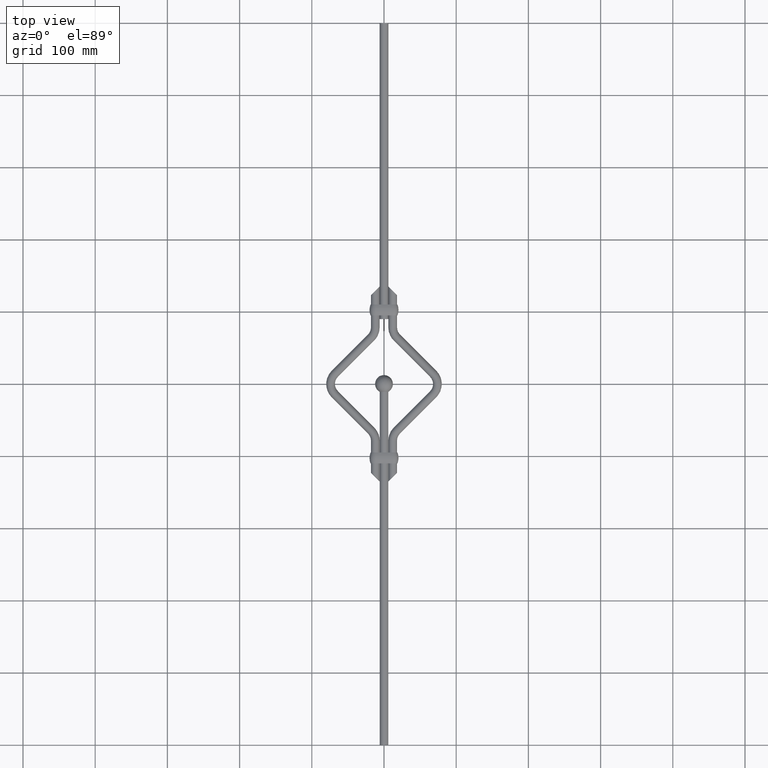
[diagram: clean part render]
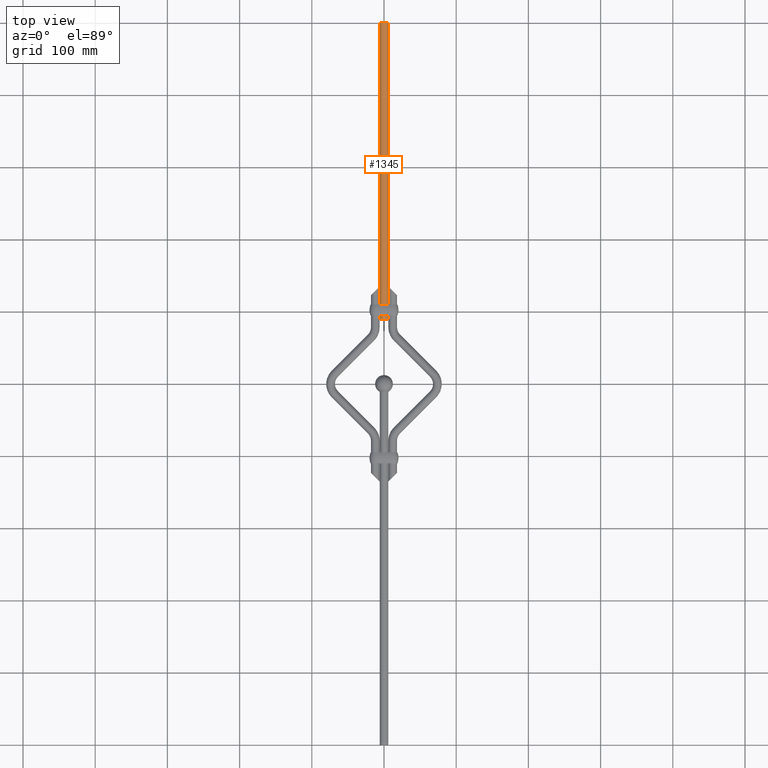
[diagram: same view with one face highlighted and labeled with its STEP entity id]
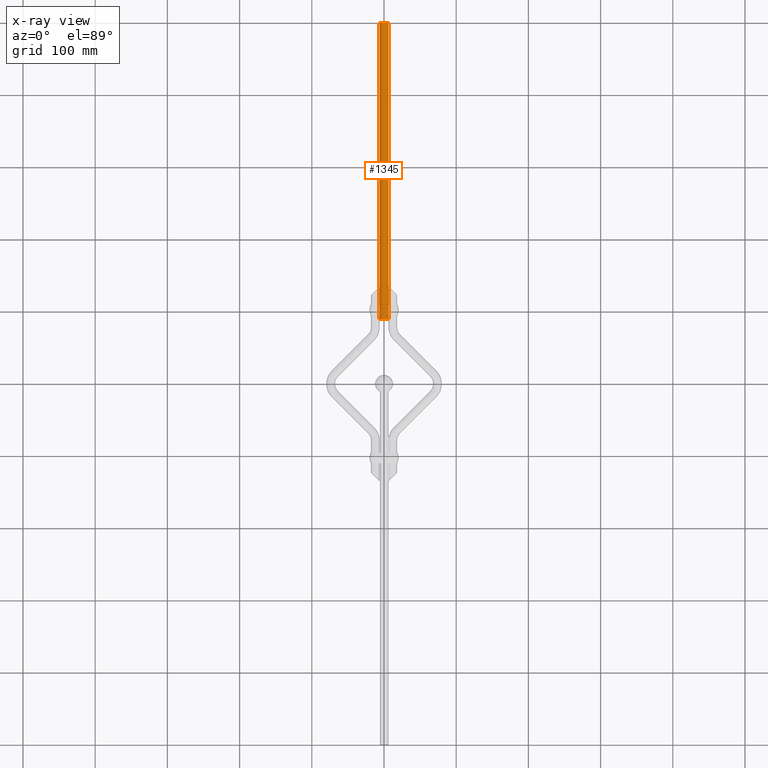
[diagram: x-ray of the same camera — body ghosted, the highlighted face saturated]
A machine part, top view. The second image highlights one B-rep face of the part: STEP entity #1345.
The next image is the same camera in x-ray: the body ghosted, the highlighted face saturated — about 0% of this face is hidden behind the body in this view.
In plain terms, the highlighted cylindrical surface (bore or boss wall) has radius 6 mm, axis along (-0, 1, 0).
Its self-contained STEP definition (entity closure, byte-faithful):
#622 = FACE_OUTER_BOUND ( 'NONE', #2506, .T. ) ;
#631 = CARTESIAN_POINT ( 'NONE',  ( 4.974100848537808084E-14, 204.9999999999999716, 0.000000000000000000 ) ) ;
#938 = EDGE_CURVE ( 'NONE', #9066, #9066, #13425, .T. ) ;
#1144 = FACE_OUTER_BOUND ( 'NONE', #1655, .T. ) ;
#1345 = ADVANCED_FACE ( 'NONE', ( #622, #1144 ), #4606, .T. ) ;
#1655 = EDGE_LOOP ( 'NONE', ( #2824 ) ) ;
#1939 = CARTESIAN_POINT ( 'NONE',  ( -5.999999999999948486, -204.9999999999999432, 0.000000000000000000 ) ) ;
#2506 = EDGE_LOOP ( 'NONE', ( #12046 ) ) ;
#2824 = ORIENTED_EDGE ( 'NONE', *, *, #9681, .T. ) ;
#3585 = AXIS2_PLACEMENT_3D ( 'NONE', #12328, #5698, #4503 ) ;
#3962 = DIRECTION ( 'NONE',  ( -1.000000000000000000, 0.000000000000000000, 0.000000000000000000 ) ) ;
#4047 = AXIS2_PLACEMENT_3D ( 'NONE', #4627, #12355, #11061 ) ;
#4503 = DIRECTION ( 'NONE',  ( -1.000000000000000000, 0.000000000000000000, 0.000000000000000000 ) ) ;
#4606 = CYLINDRICAL_SURFACE ( 'NONE', #3585, 5.999999999999997335 ) ;
#4627 = CARTESIAN_POINT ( 'NONE',  ( 4.976872535962404909E-14, -204.9999999999999432, 0.000000000000000000 ) ) ;
#4868 = CIRCLE ( 'NONE', #4047, 5.999999999999997335 ) ;
#5698 = DIRECTION ( 'NONE',  ( -6.760213230723879037E-20, 1.000000000000000000, -0.000000000000000000 ) ) ;
#6351 = AXIS2_PLACEMENT_3D ( 'NONE', #631, #7339, #3962 ) ;
#7339 = DIRECTION ( 'NONE',  ( -6.760213230723879037E-20, 1.000000000000000000, -0.000000000000000000 ) ) ;
#7493 = VERTEX_POINT ( 'NONE', #1939 ) ;
#9066 = VERTEX_POINT ( 'NONE', #10750 ) ;
#9681 = EDGE_CURVE ( 'NONE', #7493, #7493, #4868, .T. ) ;
#10750 = CARTESIAN_POINT ( 'NONE',  ( -5.999999999999948486, 204.9999999999999716, 0.000000000000000000 ) ) ;
#11061 = DIRECTION ( 'NONE',  ( -1.000000000000000000, 0.000000000000000000, 0.000000000000000000 ) ) ;
#12046 = ORIENTED_EDGE ( 'NONE', *, *, #938, .F. ) ;
#12328 = CARTESIAN_POINT ( 'NONE',  ( 4.974100848537808084E-14, 204.9999999999999716, 0.000000000000000000 ) ) ;
#12355 = DIRECTION ( 'NONE',  ( -6.760213230723879037E-20, 1.000000000000000000, -0.000000000000000000 ) ) ;
#13425 = CIRCLE ( 'NONE', #6351, 5.999999999999997335 ) ;